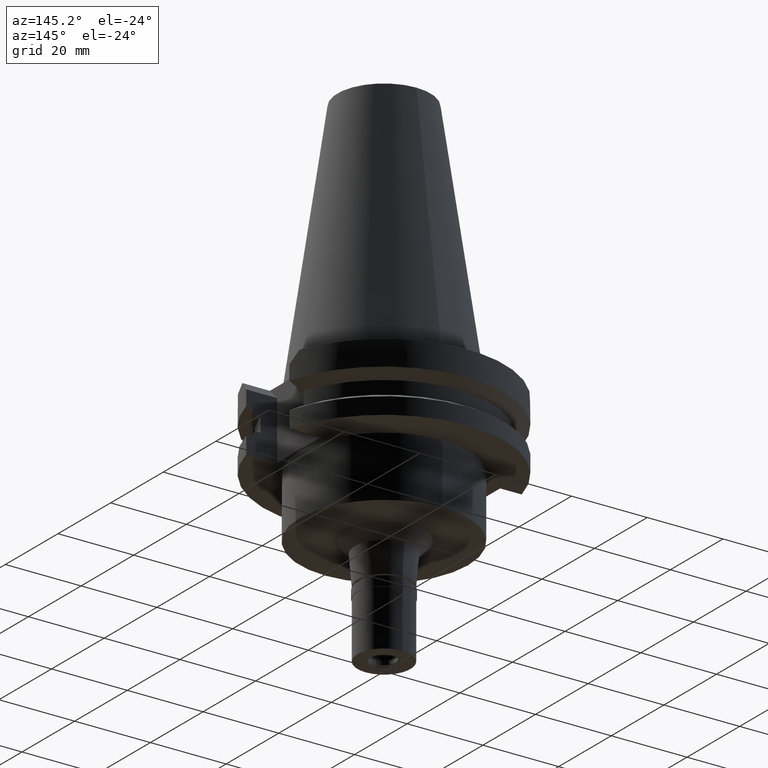
[diagram: clean part render]
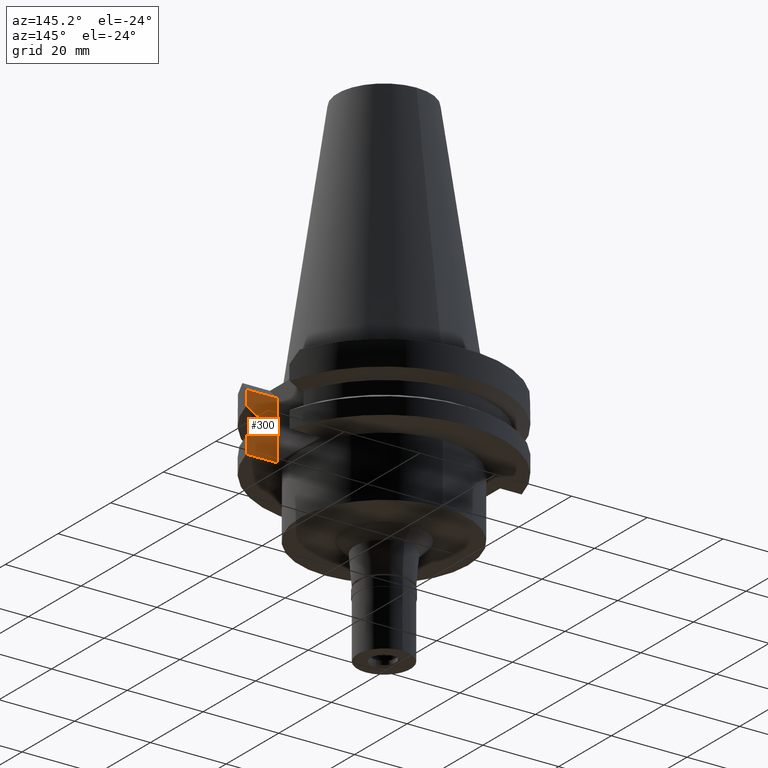
[diagram: same view with one face highlighted and labeled with its STEP entity id]
A machine part, auxiliary view. The second image highlights one B-rep face of the part: STEP entity #300.
In plain terms, the highlighted planar face has unit normal (0, -1, 0).
Its self-contained STEP definition (entity closure, byte-faithful):
#7 = VECTOR ( 'NONE', #1607, 1000.000000000000000 ) ;
#28 = DIRECTION ( 'NONE',  ( 0.9999999999999736877, -2.288883018002939186E-07, 3.995191187454893759E-13 ) ) ;
#58 = CARTESIAN_POINT ( 'NONE',  ( 22.57000000000000028, -8.189999999999999503, -19.05000000000000071 ) ) ;
#221 = DIRECTION ( 'NONE',  ( 0.9999999999999736877, -2.288724548788939513E-07, -1.019313643281973807E-12 ) ) ;
#224 = VERTEX_POINT ( 'NONE', #1388 ) ;
#227 = VERTEX_POINT ( 'NONE', #2377 ) ;
#246 = CARTESIAN_POINT ( 'NONE',  ( 22.57000000000000028, -8.189999999999999503, -3.700000000000000178 ) ) ;
#282 = LINE ( 'NONE', #1126, #2333 ) ;
#300 = ADVANCED_FACE ( 'NONE', ( #1833 ), #1676, .F. ) ;
#352 = CARTESIAN_POINT ( 'NONE',  ( 30.34652885407000156, -8.190000608136999816, -14.47016756388000047 ) ) ;
#396 = CARTESIAN_POINT ( 'NONE',  ( 30.67550162588999640, -8.189999999999999503, -3.700000000000000178 ) ) ;
#464 = VERTEX_POINT ( 'NONE', #3144 ) ;
#582 = ORIENTED_EDGE ( 'NONE', *, *, #882, .F. ) ;
#583 = LINE ( 'NONE', #1632, #947 ) ;
#659 = VERTEX_POINT ( 'NONE', #58 ) ;
#680 = ORIENTED_EDGE ( 'NONE', *, *, #1745, .T. ) ;
#729 = ORIENTED_EDGE ( 'NONE', *, *, #3175, .T. ) ;
#760 = CARTESIAN_POINT ( 'NONE',  ( 30.67550146353000073, -8.190000608127000703, -7.601327796348000376 ) ) ;
#880 = DIRECTION ( 'NONE',  ( 0.0000000000000000000, 0.0000000000000000000, 1.000000000000000000 ) ) ;
#882 = EDGE_CURVE ( 'NONE', #2416, #3139, #1830, .T. ) ;
#944 = EDGE_CURVE ( 'NONE', #2948, #2739, #282, .T. ) ;
#947 = VECTOR ( 'NONE', #880, 1000.000000000000000 ) ;
#968 = ORIENTED_EDGE ( 'NONE', *, *, #2192, .T. ) ;
#1103 = VECTOR ( 'NONE', #2764, 1000.000000000000000 ) ;
#1126 = CARTESIAN_POINT ( 'NONE',  ( 26.96361066326000255, -8.189999999999999503, -9.207499999999999574 ) ) ;
#1222 = ORIENTED_EDGE ( 'NONE', *, *, #2824, .F. ) ;
#1253 = DIRECTION ( 'NONE',  ( -4.161720215321945191E-08, -1.558769312648979618E-07, -0.9999999999999868994 ) ) ;
#1388 = CARTESIAN_POINT ( 'NONE',  ( 22.57000000000000028, -8.189999999999999503, -3.700000000000000178 ) ) ;
#1488 = CARTESIAN_POINT ( 'NONE',  ( 26.96361066326000255, -8.189999999999999503, -9.207499999999999574 ) ) ;
#1528 = CARTESIAN_POINT ( 'NONE',  ( 28.09928442416000038, -8.190000188273000248, -13.22090417024000075 ) ) ;
#1540 = CARTESIAN_POINT ( 'NONE',  ( 30.67550146353000073, -8.190000608127000703, -7.601327796348000376 ) ) ;
#1556 = CARTESIAN_POINT ( 'NONE',  ( 27.78616457837999931, -8.190000188273000248, -13.04749999999999943 ) ) ;
#1607 = DIRECTION ( 'NONE',  ( -1.000000000000000000, 0.0000000000000000000, 0.0000000000000000000 ) ) ;
#1632 = CARTESIAN_POINT ( 'NONE',  ( 22.57000000000000028, -8.189999999999999503, -19.05000000000000071 ) ) ;
#1676 = PLANE ( 'NONE',  #1854 ) ;
#1687 = CARTESIAN_POINT ( 'NONE',  ( 26.96361066326000255, -8.189999999999999503, -9.207499999999999574 ) ) ;
#1716 = ORIENTED_EDGE ( 'NONE', *, *, #2106, .T. ) ;
#1722 = LINE ( 'NONE', #1780, #2859 ) ;
#1745 = EDGE_CURVE ( 'NONE', #659, #224, #583, .T. ) ;
#1760 = VERTEX_POINT ( 'NONE', #1816 ) ;
#1780 = CARTESIAN_POINT ( 'NONE',  ( 30.67550162588999640, -8.189999999999999503, -3.700000000000000178 ) ) ;
#1788 = CARTESIAN_POINT ( 'NONE',  ( 29.69389160696000118, -8.189999741306001724, -14.10650333816000135 ) ) ;
#1816 = CARTESIAN_POINT ( 'NONE',  ( 30.67550146353000073, -8.190000608136999816, -14.65367220350000110 ) ) ;
#1830 = B_SPLINE_CURVE_WITH_KNOTS ( 'NONE', 3,
 ( #2461, #1963, #2977, #760 ),
 .UNSPECIFIED., .F., .F.,
 ( 4, 4 ),
 ( 0.0000000000000000000, 1.000000000000000000 ),
 .UNSPECIFIED. ) ;
#1833 = FACE_OUTER_BOUND ( 'NONE', #3036, .T. ) ;
#1836 = LINE ( 'NONE', #396, #7 ) ;
#1854 = AXIS2_PLACEMENT_3D ( 'NONE', #246, #3149, #2923 ) ;
#1882 = ORIENTED_EDGE ( 'NONE', *, *, #2577, .T. ) ;
#1884 = CARTESIAN_POINT ( 'NONE',  ( 27.78616457855999755, -8.190000188260000868, -9.207500000000999663 ) ) ;
#1963 = CARTESIAN_POINT ( 'NONE',  ( 28.70625664233047303, -8.190000376948226801, -8.697959228144501509 ) ) ;
#1970 = CARTESIAN_POINT ( 'NONE',  ( 30.67550146353000073, -8.190000608136999816, -14.65367220350000110 ) ) ;
#1985 = ORIENTED_EDGE ( 'NONE', *, *, #2065, .F. ) ;
#1994 = CARTESIAN_POINT ( 'NONE',  ( 30.67550162588999640, -8.189999999999999503, -19.05000000000000071 ) ) ;
#2002 = EDGE_CURVE ( 'NONE', #2948, #2416, #2920, .T. ) ;
#2065 = EDGE_CURVE ( 'NONE', #659, #3167, #2208, .T. ) ;
#2106 = EDGE_CURVE ( 'NONE', #1760, #3167, #2269, .T. ) ;
#2127 = VECTOR ( 'NONE', #28, 1000.000000000000114 ) ;
#2192 = EDGE_CURVE ( 'NONE', #464, #3139, #1722, .T. ) ;
#2208 = LINE ( 'NONE', #2981, #1103 ) ;
#2248 = CARTESIAN_POINT ( 'NONE',  ( 26.96361066326000255, -8.189999999999999503, -13.04749999999999943 ) ) ;
#2263 = CARTESIAN_POINT ( 'NONE',  ( 30.67550146353000073, -8.190000608136999816, -14.65367220350000110 ) ) ;
#2269 = LINE ( 'NONE', #1970, #3118 ) ;
#2273 = LINE ( 'NONE', #2248, #2127 ) ;
#2312 = DIRECTION ( 'NONE',  ( 0.0000000000000000000, 0.0000000000000000000, -1.000000000000000000 ) ) ;
#2333 = VECTOR ( 'NONE', #2312, 1000.000000000000000 ) ;
#2377 = CARTESIAN_POINT ( 'NONE',  ( 27.78616457837999931, -8.190000188273000248, -13.04749999999999943 ) ) ;
#2416 = VERTEX_POINT ( 'NONE', #1884 ) ;
#2461 = CARTESIAN_POINT ( 'NONE',  ( 27.78616457855999755, -8.190000188260000868, -9.207500000000999663 ) ) ;
#2556 = CARTESIAN_POINT ( 'NONE',  ( 28.73078904372999887, -8.189999993223999297, -13.57109501653000194 ) ) ;
#2577 = EDGE_CURVE ( 'NONE', #227, #1760, #2927, .T. ) ;
#2659 = ORIENTED_EDGE ( 'NONE', *, *, #944, .T. ) ;
#2708 = VECTOR ( 'NONE', #221, 1000.000000000000114 ) ;
#2739 = VERTEX_POINT ( 'NONE', #2876 ) ;
#2764 = DIRECTION ( 'NONE',  ( 1.000000000000000000, 0.0000000000000000000, 0.0000000000000000000 ) ) ;
#2824 = EDGE_CURVE ( 'NONE', #464, #224, #1836, .T. ) ;
#2859 = VECTOR ( 'NONE', #1253, 1000.000000000000114 ) ;
#2872 = ORIENTED_EDGE ( 'NONE', *, *, #2002, .F. ) ;
#2876 = CARTESIAN_POINT ( 'NONE',  ( 26.96361066326000255, -8.189999999999999503, -13.04749999999999943 ) ) ;
#2920 = LINE ( 'NONE', #1687, #2708 ) ;
#2923 = DIRECTION ( 'NONE',  ( 0.0000000000000000000, 0.0000000000000000000, -1.000000000000000000 ) ) ;
#2927 = B_SPLINE_CURVE_WITH_KNOTS ( 'NONE', 3,
 ( #1556, #1528, #2556, #1788, #352, #2263 ),
 .UNSPECIFIED., .F., .F.,
 ( 4, 1, 1, 4 ),
 ( 0.0000000000000000000, 0.3333333333333000081, 0.6666666666667000474, 1.000000000000000000 ),
 .UNSPECIFIED. ) ;
#2948 = VERTEX_POINT ( 'NONE', #1488 ) ;
#2977 = CARTESIAN_POINT ( 'NONE',  ( 29.66936136022759030, -8.190001215816227642, -8.162569467430975223 ) ) ;
#2981 = CARTESIAN_POINT ( 'NONE',  ( 22.57000000000000028, -8.189999999999999503, -19.05000000000000071 ) ) ;
#3015 = DIRECTION ( 'NONE',  ( 3.693194606116927053E-08, 1.383285057916971832E-07, -0.9999999999999897859 ) ) ;
#3036 = EDGE_LOOP ( 'NONE', ( #680, #1222, #968, #582, #2872, #2659, #729, #1882, #1716, #1985 ) ) ;
#3118 = VECTOR ( 'NONE', #3015, 1000.000000000000000 ) ;
#3139 = VERTEX_POINT ( 'NONE', #1540 ) ;
#3144 = CARTESIAN_POINT ( 'NONE',  ( 30.67550162588999640, -8.189999999999999503, -3.700000000000000178 ) ) ;
#3149 = DIRECTION ( 'NONE',  ( 0.0000000000000000000, -1.000000000000000000, 0.0000000000000000000 ) ) ;
#3167 = VERTEX_POINT ( 'NONE', #1994 ) ;
#3175 = EDGE_CURVE ( 'NONE', #2739, #227, #2273, .T. ) ;